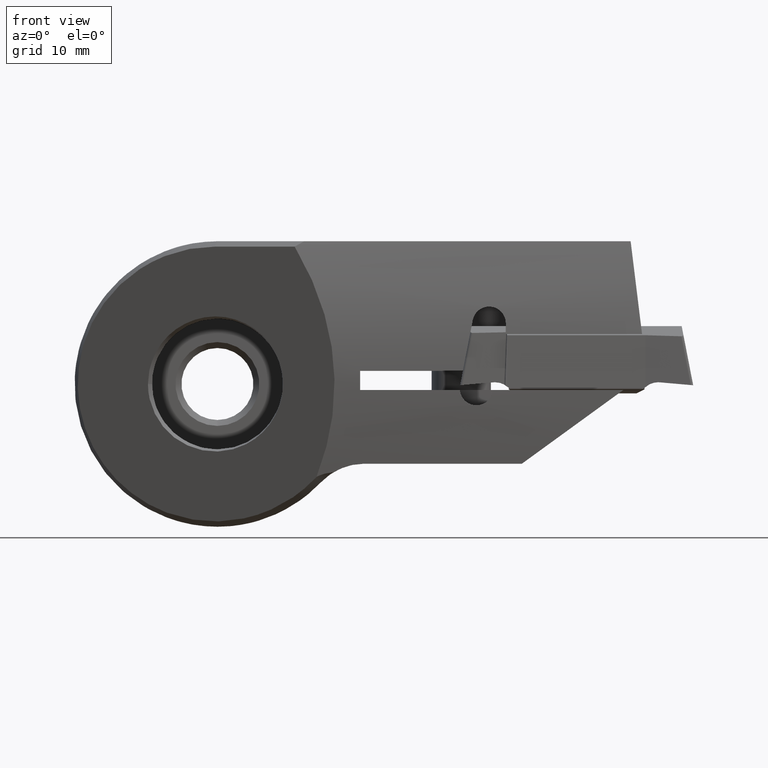
[diagram: clean part render]
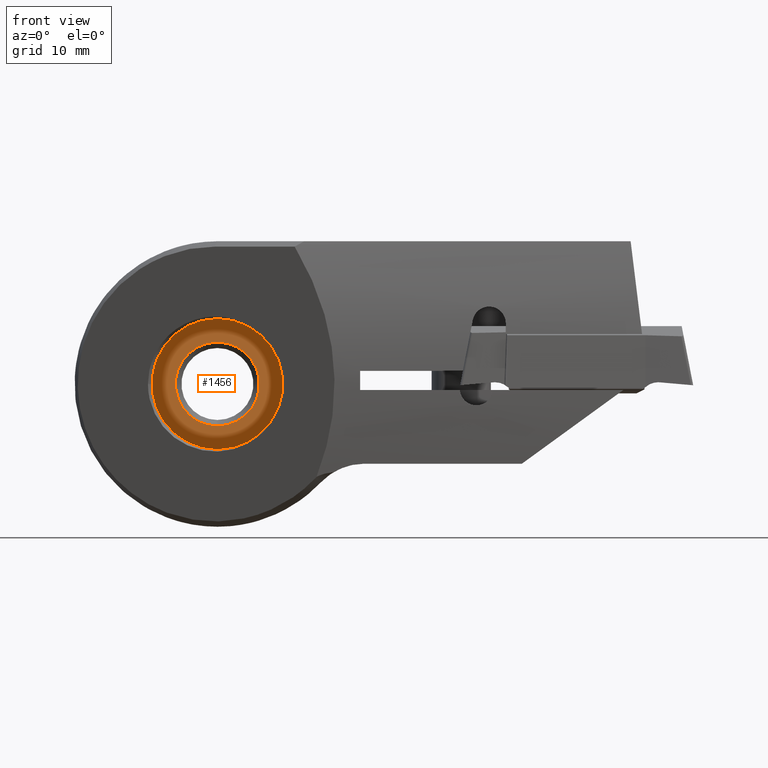
[diagram: same view with one face highlighted and labeled with its STEP entity id]
A machine part, front view. The second image highlights one B-rep face of the part: STEP entity #1456.
In plain terms, the highlighted planar face has unit normal (0, -1, 0).
Its self-contained STEP definition (entity closure, byte-faithful):
#958=VERTEX_POINT('NONE',#2440);
#1150=VERTEX_POINT('NONE',#2652);
#1456=ADVANCED_FACE('Fl�che3',(#2989,#2990),#2991,.T.);
#1566=VERTEX_POINT('NONE',#3109);
#1614=EDGE_CURVE('Kante27',#1566,#1758,#3160,.F.);
#1758=VERTEX_POINT('NONE',#3319);
#1886=EDGE_CURVE('Kante28',#958,#1150,#3463,.F.);
#1934=EDGE_CURVE('Kante28',#1150,#958,#3517,.T.);
#1976=EDGE_CURVE('Kante27',#1758,#1566,#3566,.T.);
#2440=CARTESIAN_POINT('',(4.31687996699442E-016,-4.1,3.525));
#2652=CARTESIAN_POINT('',(0.0,-4.1,-3.525));
#2989=FACE_OUTER_BOUND('',#5403,.T.);
#2990=FACE_BOUND('',#5404,.T.);
#2991=PLANE('',#5405);
#3109=CARTESIAN_POINT('',(0.0,-4.1,5.5));
#3160=CIRCLE('',#5702,5.5);
#3319=CARTESIAN_POINT('',(6.73555739531044E-016,-4.1,-5.5));
#3463=CIRCLE('',#6293,3.525);
#3517=CIRCLE('',#6375,3.525);
#3566=CIRCLE('',#6470,5.5);
#5403=EDGE_LOOP('',(#7733,#7734));
#5404=EDGE_LOOP('',(#7735,#7736));
#5405=AXIS2_PLACEMENT_3D('',#7737,#7738,#7739);
#5702=AXIS2_PLACEMENT_3D('',#7903,#7904,#7905);
#6293=AXIS2_PLACEMENT_3D('',#8225,#8226,#8227);
#6375=AXIS2_PLACEMENT_3D('',#8280,#8281,#8282);
#6470=AXIS2_PLACEMENT_3D('',#8340,#8341,#8342);
#7733=ORIENTED_EDGE('',*,*,#1614,.F.);
#7734=ORIENTED_EDGE('',*,*,#1976,.F.);
#7735=ORIENTED_EDGE('',*,*,#1934,.T.);
#7736=ORIENTED_EDGE('',*,*,#1886,.T.);
#7737=CARTESIAN_POINT('',(-5.5,-4.1,0.0));
#7738=DIRECTION('',(0.0,-1.0,0.0));
#7739=DIRECTION('',(1.0,0.0,0.0));
#7903=CARTESIAN_POINT('',(0.0,-4.1,0.0));
#7904=DIRECTION('',(0.0,-1.0,0.0));
#7905=DIRECTION('',(0.0,0.0,1.0));
#8225=CARTESIAN_POINT('',(0.0,-4.1,0.0));
#8226=DIRECTION('',(0.0,-1.0,0.0));
#8227=DIRECTION('',(0.0,0.0,-1.0));
#8280=CARTESIAN_POINT('',(0.0,-4.1,0.0));
#8281=DIRECTION('',(0.0,1.0,0.0));
#8282=DIRECTION('',(0.0,0.0,-1.0));
#8340=CARTESIAN_POINT('',(0.0,-4.1,0.0));
#8341=DIRECTION('',(-0.0,1.0,0.0));
#8342=DIRECTION('',(0.0,0.0,1.0));